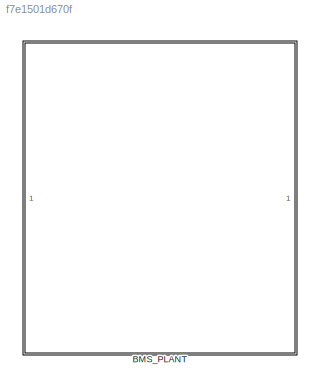
MODEL slx_f7e1501d670f
KIND library
CONFIG AbsTol = auto
CONFIG EnableMultiTasking = off
CONFIG FixedStep = auto
CONFIG MaxStep = auto
CONFIG MinStep = auto
CONFIG RelTol = 1e-3
CONFIG SampleTimeConstraint = Unconstrained
CONFIG SolverName = VariableStepAuto
CONFIG StartTime = 0.0
CONFIG StopTime = 10.0
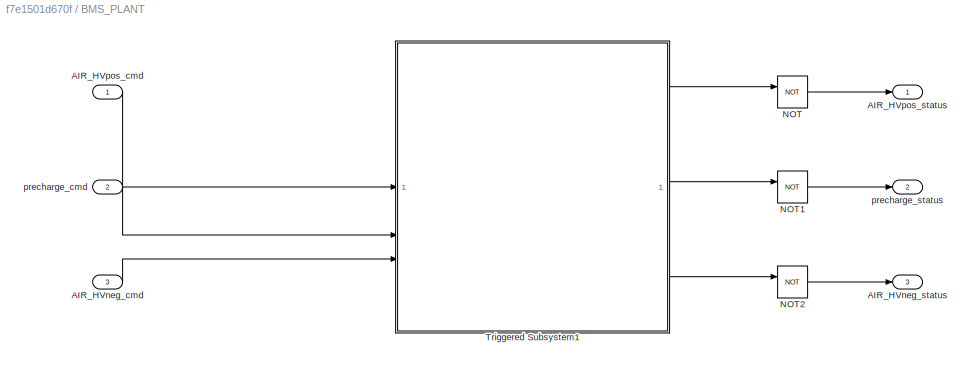
BLOCK [SubSystem] BMS_PLANT
BLOCK [Inport] BMS_PLANT/AIR_HVneg_cmd
  Port = 3
BLOCK [Outport] BMS_PLANT/AIR_HVneg_status
  Port = 3
BLOCK [Inport] BMS_PLANT/AIR_HVpos_cmd
BLOCK [Outport] BMS_PLANT/AIR_HVpos_status
BLOCK [Logic] BMS_PLANT/NOT
  AllPortsSameDT = off
  IconShape = distinctive
  Operator = NOT
  OutDataTypeStr = boolean
BLOCK [Logic] BMS_PLANT/NOT1
  AllPortsSameDT = off
  IconShape = distinctive
  Operator = NOT
  OutDataTypeStr = boolean
BLOCK [Logic] BMS_PLANT/NOT2
  AllPortsSameDT = off
  IconShape = distinctive
  Operator = NOT
  OutDataTypeStr = boolean
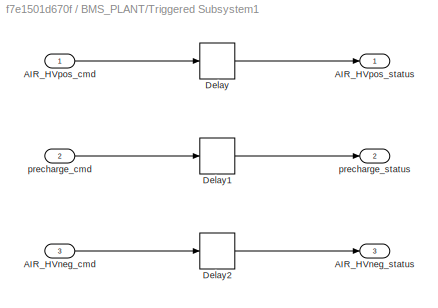
BLOCK [SubSystem] BMS_PLANT/Triggered Subsystem1
  TreatAsAtomicUnit = on
BLOCK [Inport] BMS_PLANT/Triggered Subsystem1/AIR_HVneg_cmd
  Port = 3
BLOCK [Outport] BMS_PLANT/Triggered Subsystem1/AIR_HVneg_status
  Port = 3
BLOCK [Inport] BMS_PLANT/Triggered Subsystem1/AIR_HVpos_cmd
BLOCK [Outport] BMS_PLANT/Triggered Subsystem1/AIR_HVpos_status
BLOCK [Delay] BMS_PLANT/Triggered Subsystem1/Delay
  DelayLength = 1
  InputPortMap = u0
BLOCK [Delay] BMS_PLANT/Triggered Subsystem1/Delay1
  DelayLength = 1
  InputPortMap = u0
BLOCK [Delay] BMS_PLANT/Triggered Subsystem1/Delay2
  DelayLength = 1
  InputPortMap = u0
BLOCK [Inport] BMS_PLANT/Triggered Subsystem1/precharge_cmd
  Port = 2
BLOCK [Outport] BMS_PLANT/Triggered Subsystem1/precharge_status
  Port = 2
BLOCK [Inport] BMS_PLANT/precharge_cmd
  Port = 2
BLOCK [Outport] BMS_PLANT/precharge_status
  Port = 2
LINE BMS_PLANT/AIR_HVneg_cmd:1 -> BMS_PLANT/Triggered Subsystem1:3
LINE BMS_PLANT/AIR_HVpos_cmd:1 -> BMS_PLANT/Triggered Subsystem1:1
LINE BMS_PLANT/NOT1:1 -> BMS_PLANT/precharge_status:1
LINE BMS_PLANT/NOT2:1 -> BMS_PLANT/AIR_HVneg_status:1
LINE BMS_PLANT/NOT:1 -> BMS_PLANT/AIR_HVpos_status:1
LINE BMS_PLANT/Triggered Subsystem1/AIR_HVneg_cmd:1 -> BMS_PLANT/Triggered Subsystem1/Delay2:1
LINE BMS_PLANT/Triggered Subsystem1/AIR_HVpos_cmd:1 -> BMS_PLANT/Triggered Subsystem1/Delay:1
LINE BMS_PLANT/Triggered Subsystem1/Delay1:1 -> BMS_PLANT/Triggered Subsystem1/precharge_status:1
LINE BMS_PLANT/Triggered Subsystem1/Delay2:1 -> BMS_PLANT/Triggered Subsystem1/AIR_HVneg_status:1
LINE BMS_PLANT/Triggered Subsystem1/Delay:1 -> BMS_PLANT/Triggered Subsystem1/AIR_HVpos_status:1
LINE BMS_PLANT/Triggered Subsystem1/precharge_cmd:1 -> BMS_PLANT/Triggered Subsystem1/Delay1:1
LINE BMS_PLANT/Triggered Subsystem1:1 -> BMS_PLANT/NOT:1
LINE BMS_PLANT/Triggered Subsystem1:2 -> BMS_PLANT/NOT1:1
LINE BMS_PLANT/Triggered Subsystem1:3 -> BMS_PLANT/NOT2:1
LINE BMS_PLANT/precharge_cmd:1 -> BMS_PLANT/Triggered Subsystem1:2
